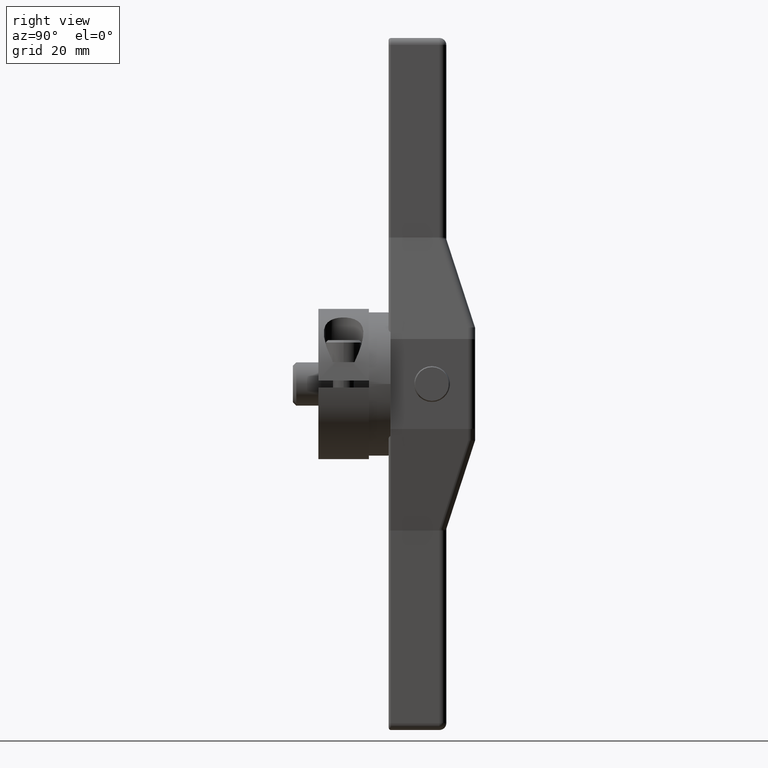
[diagram: clean part render]
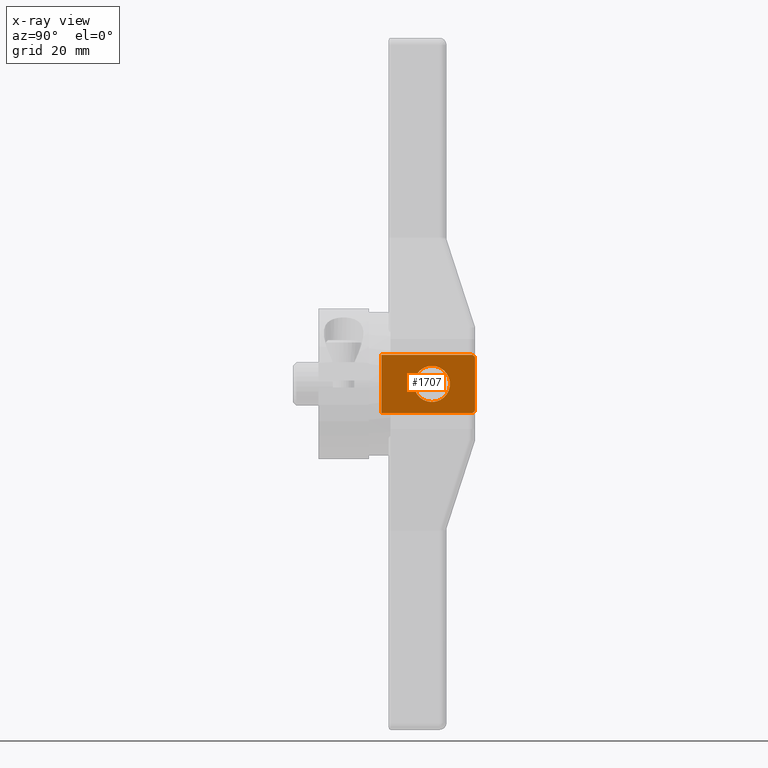
[diagram: x-ray — body ghosted, one internal face saturated and labeled with its STEP entity id]
A machine part, right view, then the same camera in x-ray: the body is ghosted and one INTERNAL B-rep face — a face not visible from any outside direction — is saturated and labeled: STEP entity #1707.
In plain terms, the highlighted planar face has unit normal (-1, 0, 0).
Its self-contained STEP definition (entity closure, byte-faithful):
#372=DIRECTION('',(0.E0,0.E0,-1.E0));
#373=VECTOR('',#372,5.051742273711E-1);
#374=CARTESIAN_POINT('',(1.84E-1,3.29E-1,2.525871136856E-1));
#375=LINE('',#374,#373);
#376=CARTESIAN_POINT('',(1.84E-1,7.66E-1,0.E0));
#377=DIRECTION('',(1.E0,0.E0,0.E0));
#378=DIRECTION('',(0.E0,0.E0,-1.E0));
#379=AXIS2_PLACEMENT_3D('',#376,#377,#378);
#381=CARTESIAN_POINT('',(1.84E-1,7.66E-1,0.E0));
#382=DIRECTION('',(1.E0,0.E0,0.E0));
#383=DIRECTION('',(0.E0,0.E0,1.E0));
#384=AXIS2_PLACEMENT_3D('',#381,#382,#383);
#386=DIRECTION('',(0.E0,-1.E0,0.E0));
#387=VECTOR('',#386,7.03E-1);
#388=CARTESIAN_POINT('',(1.84E-1,1.11E0,-2.525871136856E-1));
#389=LINE('',#388,#387);
#390=DIRECTION('',(0.E0,1.E0,0.E0));
#391=VECTOR('',#390,7.8E-2);
#392=CARTESIAN_POINT('',(1.84E-1,3.29E-1,-2.525871136856E-1));
#393=LINE('',#392,#391);
#394=DIRECTION('',(0.E0,1.E0,0.E0));
#395=VECTOR('',#394,7.8E-2);
#396=CARTESIAN_POINT('',(1.84E-1,3.29E-1,2.525871136856E-1));
#397=LINE('',#396,#395);
#398=DIRECTION('',(0.E0,-1.E0,0.E0));
#399=VECTOR('',#398,7.03E-1);
#400=CARTESIAN_POINT('',(1.84E-1,1.11E0,2.525871136856E-1));
#401=LINE('',#400,#399);
#523=CARTESIAN_POINT('',(1.84E-1,1.141E0,-2.130404891095E-1));
#524=CARTESIAN_POINT('',(1.84E-1,1.141E0,-2.154434963642E-1));
#525=CARTESIAN_POINT('',(1.84E-1,1.140688926304E0,-2.202399852415E-1));
#526=CARTESIAN_POINT('',(1.84E-1,1.139130039436E0,-2.275918217939E-1));
#527=CARTESIAN_POINT('',(1.84E-1,1.136422856902E0,-2.345453643152E-1));
#528=CARTESIAN_POINT('',(1.84E-1,1.132609626184E0,-2.407531877477E-1));
#529=CARTESIAN_POINT('',(1.84E-1,1.127957269052E0,-2.457654363030E-1));
#530=CARTESIAN_POINT('',(1.84E-1,1.122660986600E0,-2.495238757220E-1));
#531=CARTESIAN_POINT('',(1.84E-1,1.116522792193E0,-2.520125825629E-1));
#532=CARTESIAN_POINT('',(1.84E-1,1.112228054693E0,-2.525871136856E-1));
#533=CARTESIAN_POINT('',(1.84E-1,1.11E0,-2.525871136856E-1));
#552=CARTESIAN_POINT('',(1.84E-1,1.11E0,2.525871136856E-1));
#553=CARTESIAN_POINT('',(1.84E-1,1.112185248255E0,2.525871136856E-1));
#554=CARTESIAN_POINT('',(1.84E-1,1.116409503427E0,2.520271759322E-1));
#555=CARTESIAN_POINT('',(1.84E-1,1.122393487855E0,2.496634706160E-1));
#556=CARTESIAN_POINT('',(1.84E-1,1.127768612433E0,2.459370349246E-1));
#557=CARTESIAN_POINT('',(1.84E-1,1.132463581288E0,2.409467813146E-1));
#558=CARTESIAN_POINT('',(1.84E-1,1.136334729598E0,2.347320519531E-1));
#559=CARTESIAN_POINT('',(1.84E-1,1.139096669364E0,2.277197214772E-1));
#560=CARTESIAN_POINT('',(1.84E-1,1.140685013711E0,2.202929328014E-1));
#561=CARTESIAN_POINT('',(1.84E-1,1.141E0,2.154602248755E-1));
#562=CARTESIAN_POINT('',(1.84E-1,1.141E0,2.130404891095E-1));
#564=DIRECTION('',(0.E0,0.E0,1.E0));
#565=VECTOR('',#564,4.260809782189E-1);
#566=CARTESIAN_POINT('',(1.84E-1,1.141E0,-2.130404891095E-1));
#567=LINE('',#566,#565);
#1034=CARTESIAN_POINT('',(1.84E-1,1.141E0,-2.130404891095E-1));
#1035=CARTESIAN_POINT('',(1.84E-1,1.141E0,2.130404891095E-1));
#1036=VERTEX_POINT('',#1034);
#1037=VERTEX_POINT('',#1035);
#1062=VERTEX_POINT('',#533);
#1063=VERTEX_POINT('',#552);
#1066=CARTESIAN_POINT('',(1.84E-1,7.66E-1,-1.5635E-1));
#1067=CARTESIAN_POINT('',(1.84E-1,7.66E-1,1.5635E-1));
#1068=VERTEX_POINT('',#1066);
#1069=VERTEX_POINT('',#1067);
#1200=CARTESIAN_POINT('',(1.84E-1,4.07E-1,-2.525871136856E-1));
#1201=VERTEX_POINT('',#1200);
#1202=CARTESIAN_POINT('',(1.84E-1,4.07E-1,2.525871136856E-1));
#1203=VERTEX_POINT('',#1202);
#1208=CARTESIAN_POINT('',(1.84E-1,3.29E-1,2.525871136856E-1));
#1209=VERTEX_POINT('',#1208);
#1210=CARTESIAN_POINT('',(1.84E-1,3.29E-1,-2.525871136856E-1));
#1211=VERTEX_POINT('',#1210);
#1683=CARTESIAN_POINT('',(1.84E-1,1.141E0,3.75E-1));
#1684=DIRECTION('',(-1.E0,0.E0,0.E0));
#1685=DIRECTION('',(0.E0,-1.E0,0.E0));
#1686=AXIS2_PLACEMENT_3D('',#1683,#1684,#1685);
#1687=PLANE('',#1686);
#1688=ORIENTED_EDGE('',*,*,#1412,.T.);
#1689=ORIENTED_EDGE('',*,*,#1649,.F.);
#1690=ORIENTED_EDGE('',*,*,#1678,.F.);
#1691=ORIENTED_EDGE('',*,*,#1652,.T.);
#1692=ORIENTED_EDGE('',*,*,#1428,.F.);
#1694=ORIENTED_EDGE('',*,*,#1693,.T.);
#1696=ORIENTED_EDGE('',*,*,#1695,.F.);
#1698=ORIENTED_EDGE('',*,*,#1697,.T.);
#1699=EDGE_LOOP('',(#1688,#1689,#1690,#1691,#1692,#1694,#1696,#1698));
#1700=FACE_OUTER_BOUND('',#1699,.F.);
#1702=ORIENTED_EDGE('',*,*,#1701,.T.);
#1704=ORIENTED_EDGE('',*,*,#1703,.T.);
#1705=EDGE_LOOP('',(#1702,#1704));
#1706=FACE_BOUND('',#1705,.F.);
#1707=ADVANCED_FACE('',(#1700,#1706),#1687,.F.);
#380=CIRCLE('',#379,1.5635E-1);
#385=CIRCLE('',#384,1.5635E-1);
#534=B_SPLINE_CURVE_WITH_KNOTS('',3,(#523,#524,#525,#526,#527,#528,#529,#530,
#531,#532,#533),.UNSPECIFIED.,.F.,.F.,(4,1,1,1,1,1,1,1,4),(0.E0,1.25E-1,2.5E-1,
3.75E-1,5.E-1,6.25E-1,7.5E-1,8.75E-1,1.E0),.UNSPECIFIED.);
#563=B_SPLINE_CURVE_WITH_KNOTS('',3,(#552,#553,#554,#555,#556,#557,#558,#559,
#560,#561,#562),.UNSPECIFIED.,.F.,.F.,(4,1,1,1,1,1,1,1,4),(0.E0,1.25E-1,2.5E-1,
3.75E-1,5.E-1,6.25E-1,7.5E-1,8.75E-1,1.E0),.UNSPECIFIED.);
#1412=EDGE_CURVE('',#1062,#1201,#389,.T.);
#1428=EDGE_CURVE('',#1063,#1203,#401,.T.);
#1649=EDGE_CURVE('',#1211,#1201,#393,.T.);
#1652=EDGE_CURVE('',#1209,#1203,#397,.T.);
#1678=EDGE_CURVE('',#1209,#1211,#375,.T.);
#1693=EDGE_CURVE('',#1063,#1037,#563,.T.);
#1695=EDGE_CURVE('',#1036,#1037,#567,.T.);
#1697=EDGE_CURVE('',#1036,#1062,#534,.T.);
#1701=EDGE_CURVE('',#1068,#1069,#380,.T.);
#1703=EDGE_CURVE('',#1069,#1068,#385,.T.);